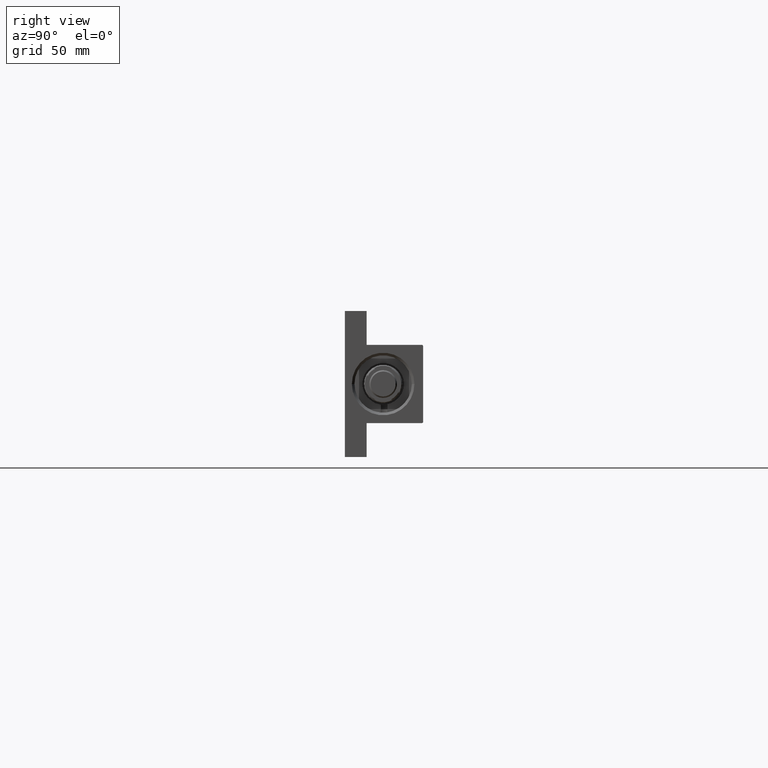
[diagram: clean part render]
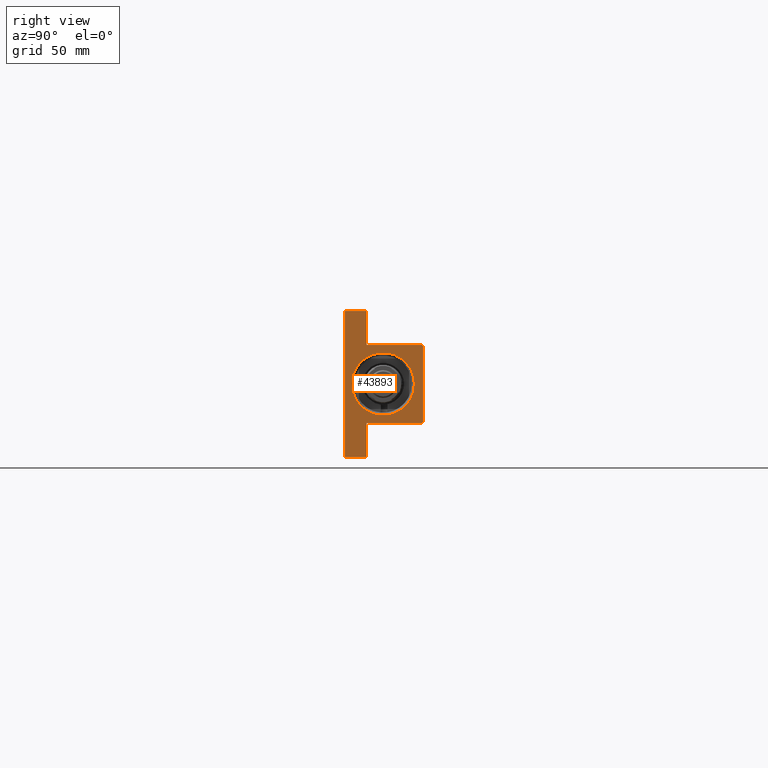
[diagram: same view with one face highlighted and labeled with its STEP entity id]
A machine part, right view. The second image highlights one B-rep face of the part: STEP entity #43893.
In plain terms, the highlighted planar face has unit normal (-1, 0, -0).
Its self-contained STEP definition (entity closure, byte-faithful):
#86 = CARTESIAN_POINT ( 'NONE',  ( 353.0000000000000568, 22.50000000000000355, 22.50000000000000355 ) ) ;
#105 = CARTESIAN_POINT ( 'NONE',  ( 353.0000000000000568, 22.50000000000000355, 22.50000000000000355 ) ) ;
#351 = VECTOR ( 'NONE', #37454, 1000.000000000000000 ) ;
#878 = EDGE_LOOP ( 'NONE', ( #10617, #6228 ) ) ;
#1238 = DIRECTION ( 'NONE',  ( 0.000000000000000000, 0.000000000000000000, -1.000000000000000000 ) ) ;
#2295 = DIRECTION ( 'NONE',  ( -1.000000000000000000, 0.000000000000000000, -0.000000000000000000 ) ) ;
#2617 = CARTESIAN_POINT ( 'NONE',  ( 353.0000000000000568, 21.99999999999994671, 22.50000000000000355 ) ) ;
#3719 = DIRECTION ( 'NONE',  ( 0.000000000000000000, 0.000000000000000000, -1.000000000000000000 ) ) ;
#4407 = CIRCLE ( 'NONE', #37773, 18.00000000000007105 ) ;
#4996 = VERTEX_POINT ( 'NONE', #13743 ) ;
#5981 = EDGE_CURVE ( 'NONE', #41147, #10982, #15899, .T. ) ;
#6228 = ORIENTED_EDGE ( 'NONE', *, *, #40676, .T. ) ;
#7822 = VECTOR ( 'NONE', #36408, 1000.000000000000114 ) ;
#7851 = CARTESIAN_POINT ( 'NONE',  ( 353.0000000000000568, 0.000000000000000000, -0.4999999999999967804 ) ) ;
#7952 = DIRECTION ( 'NONE',  ( -0.000000000000000000, -1.000000000000000000, -0.000000000000000000 ) ) ;
#9234 = DIRECTION ( 'NONE',  ( -1.000000000000000000, 0.000000000000000000, -0.000000000000000000 ) ) ;
#10054 = VECTOR ( 'NONE', #11754, 1000.000000000000000 ) ;
#10617 = ORIENTED_EDGE ( 'NONE', *, *, #20425, .T. ) ;
#10982 = VERTEX_POINT ( 'NONE', #44717 ) ;
#11144 = VECTOR ( 'NONE', #31682, 1000.000000000000000 ) ;
#11734 = DIRECTION ( 'NONE',  ( 0.000000000000000000, 0.000000000000000000, 1.000000000000000000 ) ) ;
#11754 = DIRECTION ( 'NONE',  ( 0.000000000000000000, -1.000000000000000000, -2.312964634635742957E-16 ) ) ;
#11837 = LINE ( 'NONE', #29357, #38926 ) ;
#12191 = LINE ( 'NONE', #27017, #351 ) ;
#12258 = VERTEX_POINT ( 'NONE', #38808 ) ;
#13039 = VERTEX_POINT ( 'NONE', #18751 ) ;
#13743 = CARTESIAN_POINT ( 'NONE',  ( 353.0000000000000568, -42.00000000000003553, -22.50000000000000000 ) ) ;
#13971 = CARTESIAN_POINT ( 'NONE',  ( 353.0000000000000568, -22.49999999999999645, 21.99999999999993605 ) ) ;
#13980 = ORIENTED_EDGE ( 'NONE', *, *, #5981, .T. ) ;
#14319 = EDGE_CURVE ( 'NONE', #18814, #4996, #12191, .T. ) ;
#15899 = LINE ( 'NONE', #24392, #11144 ) ;
#17550 = CARTESIAN_POINT ( 'NONE',  ( 353.0000000000000568, 2.204364238465244894E-15, 17.50000000000007461 ) ) ;
#17684 = CARTESIAN_POINT ( 'NONE',  ( 353.0000000000000568, 0.000000000000000000, -18.50000000000006750 ) ) ;
#17818 = CARTESIAN_POINT ( 'NONE',  ( 353.0000000000000568, -42.00000000000003553, -9.999999999999998224 ) ) ;
#18658 = EDGE_CURVE ( 'NONE', #28488, #12258, #28530, .T. ) ;
#18751 = CARTESIAN_POINT ( 'NONE',  ( 353.0000000000000568, 41.99999999999996447, -22.50000000000000000 ) ) ;
#18800 = DIRECTION ( 'NONE',  ( -1.000000000000000000, 0.000000000000000000, -0.000000000000000000 ) ) ;
#18814 = VERTEX_POINT ( 'NONE', #17818 ) ;
#19699 = CARTESIAN_POINT ( 'NONE',  ( 353.0000000000000568, 0.000000000000000000, -0.4999999999999967804 ) ) ;
#20379 = EDGE_CURVE ( 'NONE', #40086, #12258, #33608, .T. ) ;
#20425 = EDGE_CURVE ( 'NONE', #24531, #43416, #4407, .T. ) ;
#20753 = CARTESIAN_POINT ( 'NONE',  ( 353.0000000000000568, 41.99999999999996447, -9.999999999999998224 ) ) ;
#20828 = CARTESIAN_POINT ( 'NONE',  ( 353.0000000000000568, 21.99999999999994671, 22.50000000000000355 ) ) ;
#20986 = VERTEX_POINT ( 'NONE', #23597 ) ;
#21375 = LINE ( 'NONE', #39583, #7822 ) ;
#21516 = VECTOR ( 'NONE', #3719, 1000.000000000000000 ) ;
#22173 = EDGE_LOOP ( 'NONE', ( #23082, #23869, #27115, #31763, #13980, #44141, #38954, #28445, #33579, #29809 ) ) ;
#23082 = ORIENTED_EDGE ( 'NONE', *, *, #20379, .F. ) ;
#23597 = CARTESIAN_POINT ( 'NONE',  ( 353.0000000000000568, -21.99999999999992539, 22.49999999999999289 ) ) ;
#23869 = ORIENTED_EDGE ( 'NONE', *, *, #25459, .T. ) ;
#24050 = VECTOR ( 'NONE', #1238, 1000.000000000000000 ) ;
#24392 = CARTESIAN_POINT ( 'NONE',  ( 353.0000000000000568, -22.49999999999999645, 22.49999999999999289 ) ) ;
#24425 = FACE_BOUND ( 'NONE', #878, .T. ) ;
#24531 = VERTEX_POINT ( 'NONE', #17684 ) ;
#25459 = EDGE_CURVE ( 'NONE', #40086, #39702, #35428, .T. ) ;
#26024 = EDGE_CURVE ( 'NONE', #28488, #13039, #26759, .T. ) ;
#26759 = LINE ( 'NONE', #36777, #24050 ) ;
#26779 = EDGE_CURVE ( 'NONE', #39702, #20986, #45040, .T. ) ;
#27017 = CARTESIAN_POINT ( 'NONE',  ( 353.0000000000000568, -42.00000000000003553, -9.999999999999998224 ) ) ;
#27115 = ORIENTED_EDGE ( 'NONE', *, *, #26779, .T. ) ;
#28110 = LINE ( 'NONE', #47050, #32757 ) ;
#28200 = CIRCLE ( 'NONE', #47558, 18.00000000000007105 ) ;
#28309 = DIRECTION ( 'NONE',  ( -0.000000000000000000, 0.000000000000000000, 1.000000000000000000 ) ) ;
#28445 = ORIENTED_EDGE ( 'NONE', *, *, #42167, .F. ) ;
#28488 = VERTEX_POINT ( 'NONE', #45730 ) ;
#28530 = LINE ( 'NONE', #20753, #45516 ) ;
#29020 = CARTESIAN_POINT ( 'NONE',  ( 353.0000000000000568, 0.000000000000000000, 0.000000000000000000 ) ) ;
#29357 = CARTESIAN_POINT ( 'NONE',  ( 353.0000000000000568, -42.00000000000003553, -9.999999999999998224 ) ) ;
#29809 = ORIENTED_EDGE ( 'NONE', *, *, #18658, .T. ) ;
#31210 = DIRECTION ( 'NONE',  ( 0.000000000000000000, -1.000000000000000000, 0.000000000000000000 ) ) ;
#31682 = DIRECTION ( 'NONE',  ( 0.000000000000000000, 0.000000000000000000, -1.000000000000000000 ) ) ;
#31763 = ORIENTED_EDGE ( 'NONE', *, *, #33057, .T. ) ;
#32757 = VECTOR ( 'NONE', #42913, 1000.000000000000000 ) ;
#33057 = EDGE_CURVE ( 'NONE', #20986, #41147, #21375, .T. ) ;
#33579 = ORIENTED_EDGE ( 'NONE', *, *, #26024, .F. ) ;
#33608 = LINE ( 'NONE', #86, #21516 ) ;
#34717 = EDGE_CURVE ( 'NONE', #10982, #18814, #11837, .T. ) ;
#34980 = DIRECTION ( 'NONE',  ( 0.000000000000000000, 0.000000000000000000, 1.000000000000000000 ) ) ;
#35428 = LINE ( 'NONE', #2617, #39496 ) ;
#35589 = FACE_OUTER_BOUND ( 'NONE', #22173, .T. ) ;
#36296 = CARTESIAN_POINT ( 'NONE',  ( 353.0000000000000568, 22.50000000000000355, 21.99999999999994671 ) ) ;
#36408 = DIRECTION ( 'NONE',  ( -0.000000000000000000, -0.7071067811865474617, -0.7071067811865474617 ) ) ;
#36777 = CARTESIAN_POINT ( 'NONE',  ( 353.0000000000000568, 41.99999999999996447, -9.999999999999998224 ) ) ;
#37454 = DIRECTION ( 'NONE',  ( 0.000000000000000000, 0.000000000000000000, -1.000000000000000000 ) ) ;
#37773 = AXIS2_PLACEMENT_3D ( 'NONE', #7851, #18800, #11734 ) ;
#38808 = CARTESIAN_POINT ( 'NONE',  ( 353.0000000000000568, 22.49999999999993605, -9.999999999999998224 ) ) ;
#38926 = VECTOR ( 'NONE', #7952, 1000.000000000000000 ) ;
#38954 = ORIENTED_EDGE ( 'NONE', *, *, #14319, .T. ) ;
#39496 = VECTOR ( 'NONE', #39783, 1000.000000000000114 ) ;
#39583 = CARTESIAN_POINT ( 'NONE',  ( 353.0000000000000568, -22.49999999999999645, 21.99999999999993605 ) ) ;
#39702 = VERTEX_POINT ( 'NONE', #20828 ) ;
#39783 = DIRECTION ( 'NONE',  ( 0.000000000000000000, -0.7071067811865474617, 0.7071067811865474617 ) ) ;
#39793 = AXIS2_PLACEMENT_3D ( 'NONE', #29020, #2295, #28309 ) ;
#40086 = VERTEX_POINT ( 'NONE', #36296 ) ;
#40676 = EDGE_CURVE ( 'NONE', #43416, #24531, #28200, .T. ) ;
#41147 = VERTEX_POINT ( 'NONE', #13971 ) ;
#42167 = EDGE_CURVE ( 'NONE', #13039, #4996, #28110, .T. ) ;
#42913 = DIRECTION ( 'NONE',  ( 0.000000000000000000, -1.000000000000000000, -7.709882115452476934E-17 ) ) ;
#43416 = VERTEX_POINT ( 'NONE', #17550 ) ;
#43893 = ADVANCED_FACE ( 'NONE', ( #24425, #35589 ), #47008, .F. ) ;
#44141 = ORIENTED_EDGE ( 'NONE', *, *, #34717, .T. ) ;
#44717 = CARTESIAN_POINT ( 'NONE',  ( 353.0000000000000568, -22.49999999999999645, -9.999999999999980460 ) ) ;
#45040 = LINE ( 'NONE', #105, #10054 ) ;
#45516 = VECTOR ( 'NONE', #31210, 1000.000000000000000 ) ;
#45730 = CARTESIAN_POINT ( 'NONE',  ( 353.0000000000000568, 41.99999999999996447, -9.999999999999998224 ) ) ;
#47008 = PLANE ( 'NONE',  #39793 ) ;
#47050 = CARTESIAN_POINT ( 'NONE',  ( 353.0000000000000568, 22.50000000000000355, -22.49999999999999645 ) ) ;
#47558 = AXIS2_PLACEMENT_3D ( 'NONE', #19699, #9234, #34980 ) ;